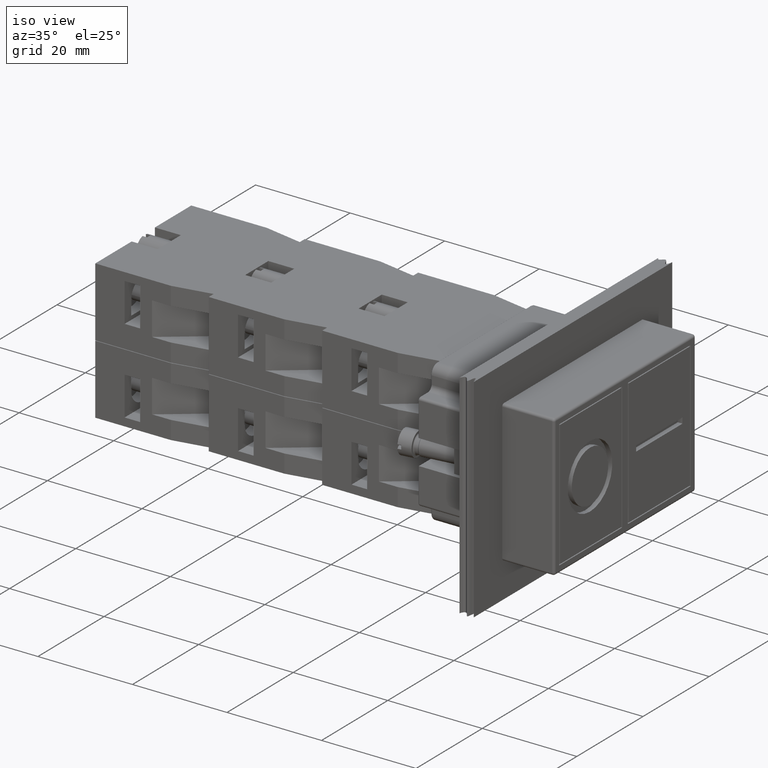
[diagram: clean part render]
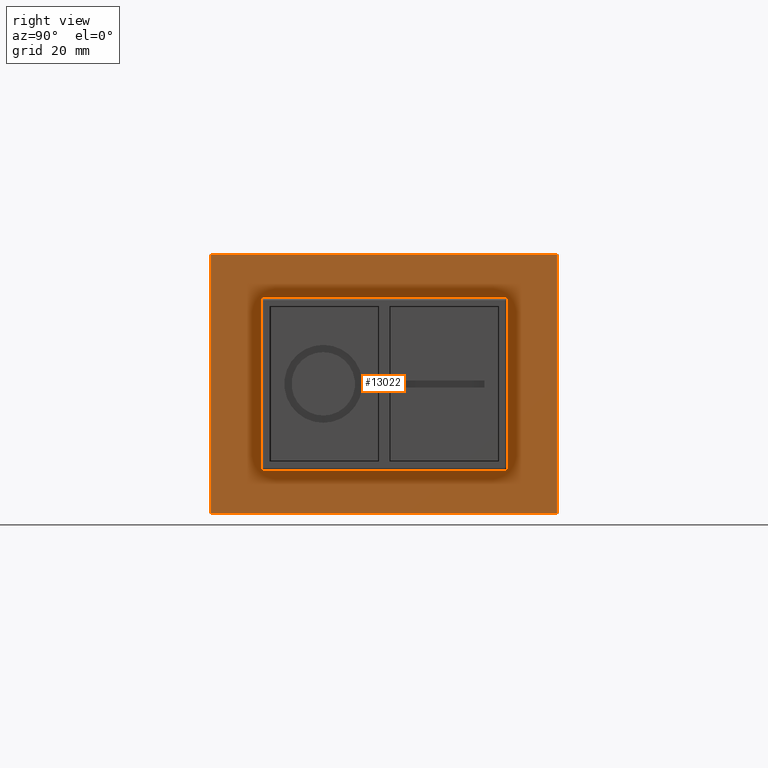
[diagram: tour spotlight — one face highlighted and labeled with its STEP entity id]
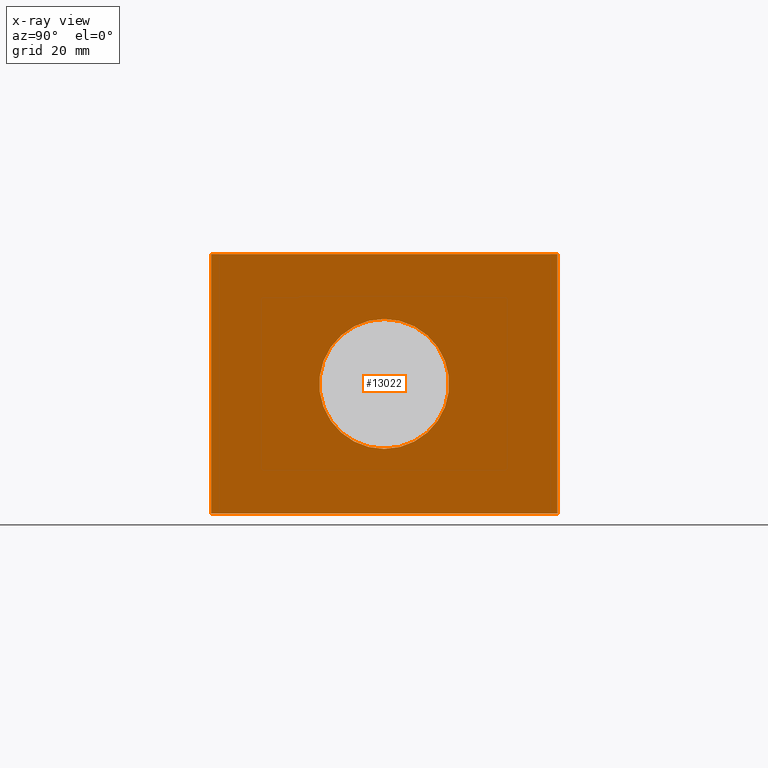
[diagram: x-ray of the same camera — body ghosted, this tour face saturated]
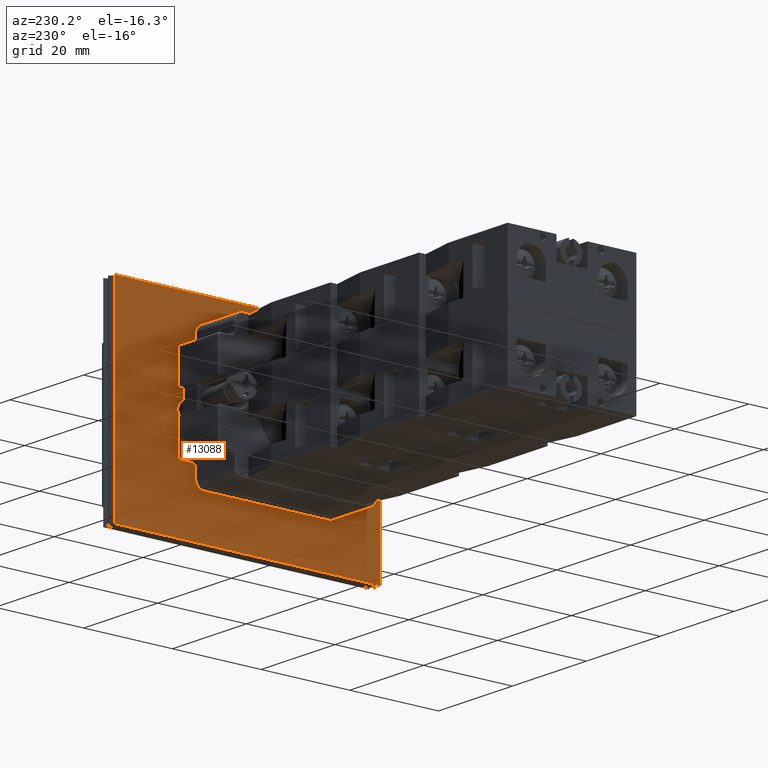
[diagram: tour spotlight — one face highlighted and labeled with its STEP entity id]
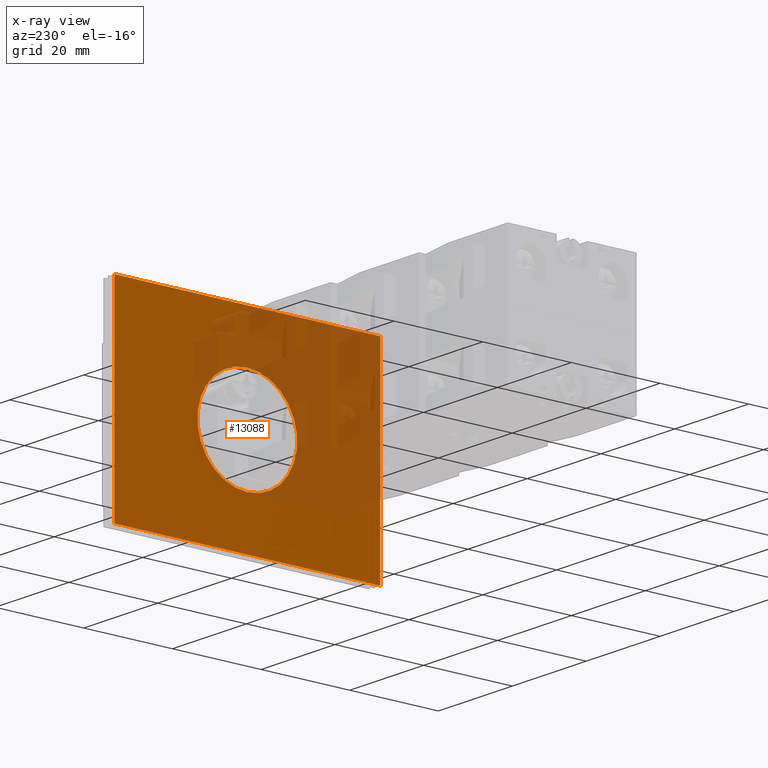
[diagram: x-ray of the same camera — body ghosted, this tour face saturated]
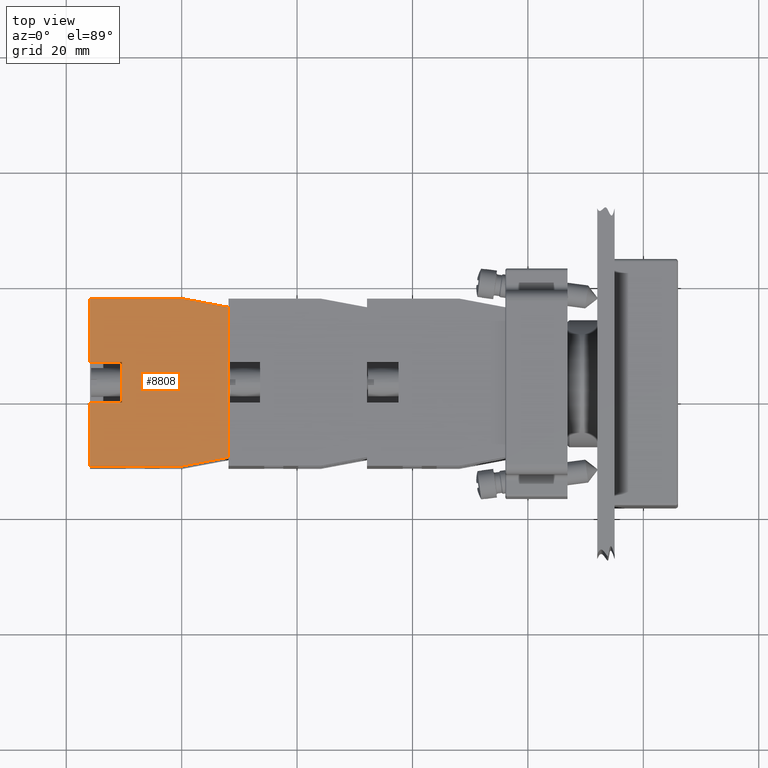
[diagram: tour spotlight — one face highlighted and labeled with its STEP entity id]
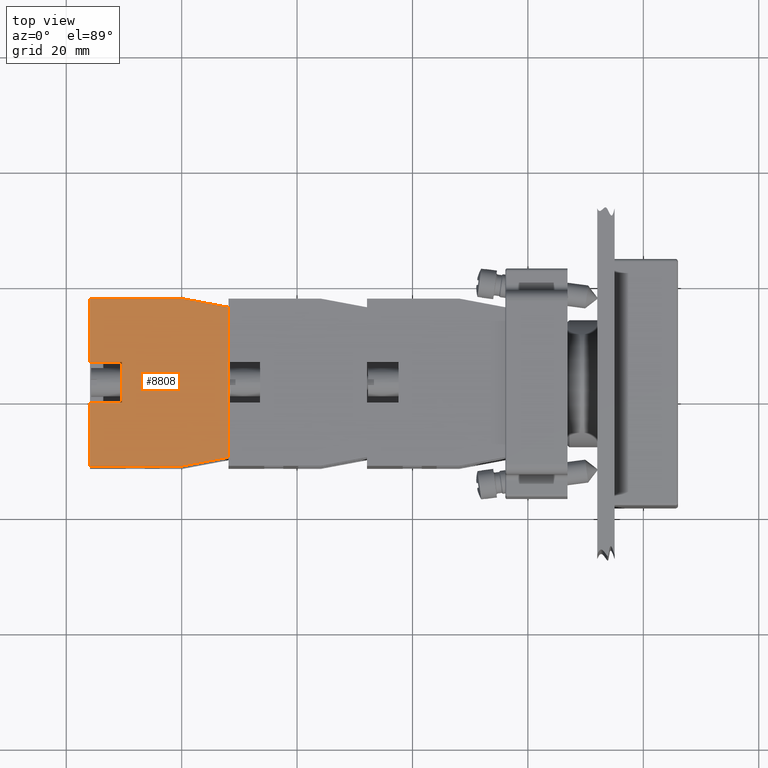
[diagram: tour spotlight — one face highlighted and labeled with its STEP entity id]
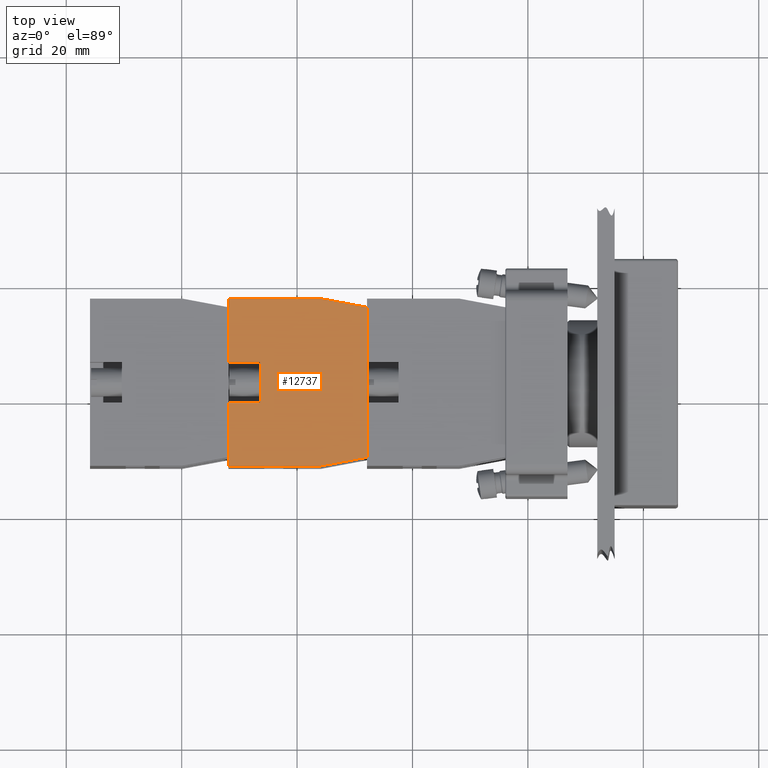
[diagram: tour spotlight — one face highlighted and labeled with its STEP entity id]
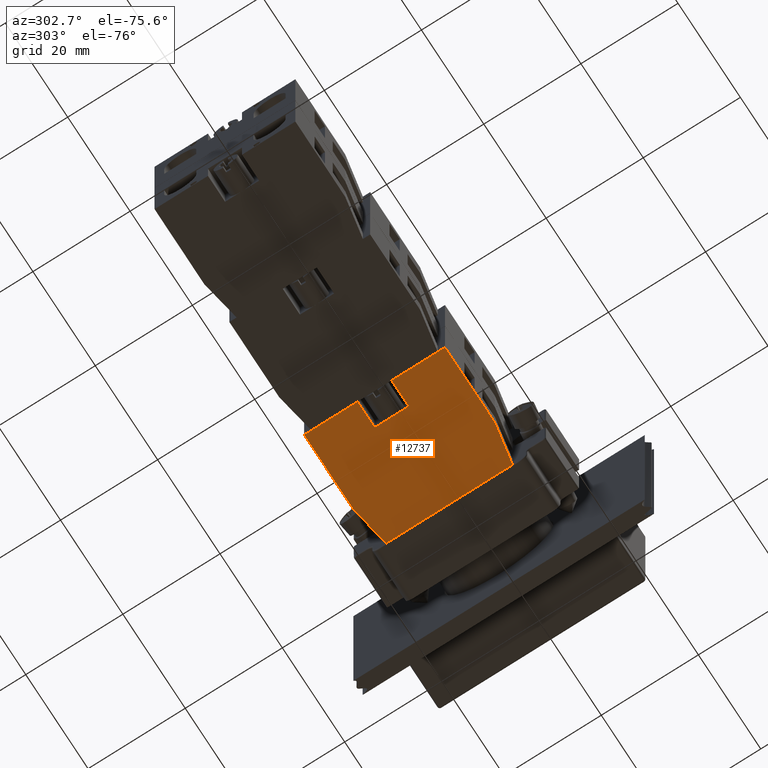
[diagram: tour spotlight — one face highlighted and labeled with its STEP entity id]
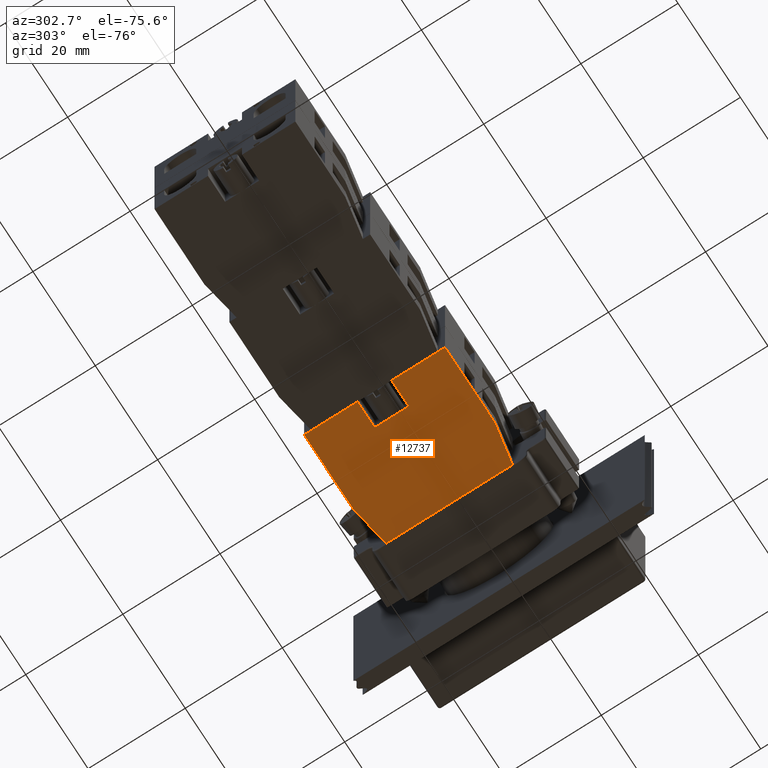
[diagram: tour spotlight — one face highlighted and labeled with its STEP entity id]
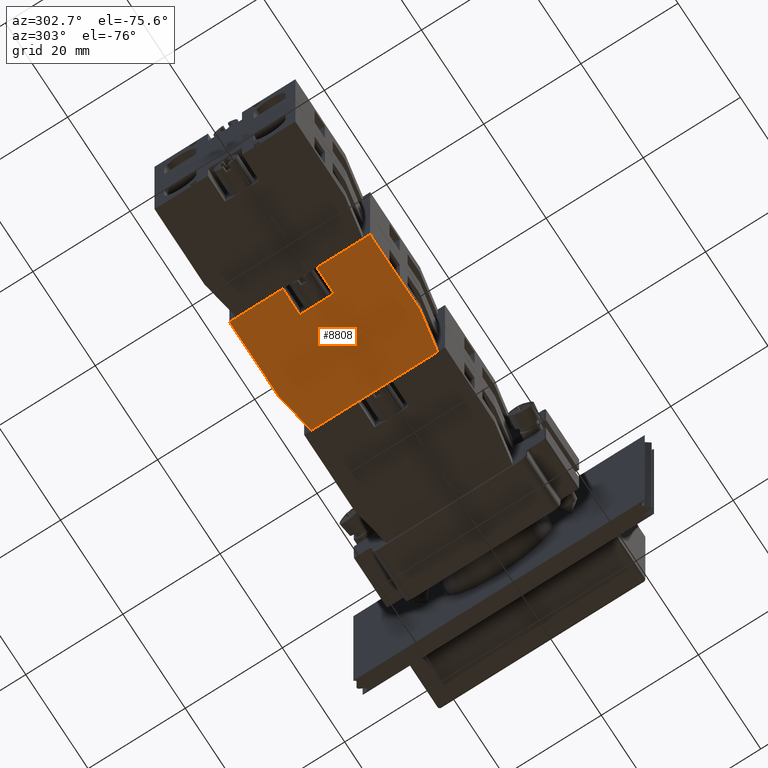
[diagram: tour spotlight — one face highlighted and labeled with its STEP entity id]
A machine part: a face-by-face anatomy tour. The part has 1243 B-rep faces; the first image is the clean iso view, then the 8 largest visible faces are spotlighted one at a time (largest first), each with its STEP entity span.

Face 1 — right view, entity #13022. An x-ray twin of the same camera follows (body ghosted, this face saturated) — the face is partly hidden behind the body. In plain terms, the highlighted planar face has unit normal (1, -0, -0).
Definition (entity closure, byte-faithful):
#12927=CARTESIAN_POINT('',(-12.704183619849175,-32.725398273954283,11.250000000000000));
#12928=VERTEX_POINT('',#12927);
#12929=CARTESIAN_POINT('',(-12.704183619849179,-32.725398273954283,22.500000000000000));
#12930=DIRECTION('',(-1.0,0.0,0.0));
#12931=DIRECTION('',(0.0,0.0,1.0));
#12932=AXIS2_PLACEMENT_3D('',#12929,#12930,#12931);
#12933=CIRCLE('',#12932,11.250000000000000);
#12934=EDGE_CURVE('',#12928,#12928,#12933,.T.);
#12952=CARTESIAN_POINT('',(-12.704183619849179,-2.725398273954287,45.0));
#12953=VERTEX_POINT('',#12952);
#12962=CARTESIAN_POINT('',(-12.704183619849179,-2.725398273954287,0.0));
#12963=VERTEX_POINT('',#12962);
#12964=CARTESIAN_POINT('',(-12.704183619849179,-2.725398273954287,0.0));
#12965=DIRECTION('',(0.0,0.0,1.0));
#12966=VECTOR('',#12965,45.0);
#12967=LINE('',#12964,#12966);
#12968=EDGE_CURVE('',#12963,#12953,#12967,.T.);
#12989=CARTESIAN_POINT('',(-12.704183619849179,-2.725398273954287,0.0));
#12990=DIRECTION('',(1.0,0.0,0.0));
#12991=DIRECTION('',(0.0,0.0,-1.0));
#12992=AXIS2_PLACEMENT_3D('',#12989,#12990,#12991);
#12993=PLANE('',#12992);
#12994=CARTESIAN_POINT('',(-12.704183619849172,-62.725398273954283,45.0));
#12995=VERTEX_POINT('',#12994);
#12996=CARTESIAN_POINT('',(-12.704183619849179,-2.725398273954287,45.0));
#12997=DIRECTION('',(0.0,-1.0,0.0));
#12998=VECTOR('',#12997,60.0);
#12999=LINE('',#12996,#12998);
#13000=EDGE_CURVE('',#12953,#12995,#12999,.T.);
#13001=ORIENTED_EDGE('',*,*,#13000,.T.);
#13002=CARTESIAN_POINT('',(-12.704183619849172,-62.725398273954283,0.0));
#13003=VERTEX_POINT('',#13002);
#13004=CARTESIAN_POINT('',(-12.704183619849172,-62.725398273954283,0.0));
#13005=DIRECTION('',(0.0,0.0,1.0));
#13006=VECTOR('',#13005,45.0);
#13007=LINE('',#13004,#13006);
#13008=EDGE_CURVE('',#13003,#12995,#13007,.T.);
#13009=ORIENTED_EDGE('',*,*,#13008,.F.);
#13010=CARTESIAN_POINT('',(-12.704183619849172,-62.725398273954283,0.0));
#13011=DIRECTION('',(0.0,1.0,0.0));
#13012=VECTOR('',#13011,60.0);
#13013=LINE('',#13010,#13012);
#13014=EDGE_CURVE('',#13003,#12963,#13013,.T.);
#13015=ORIENTED_EDGE('',*,*,#13014,.T.);
#13016=ORIENTED_EDGE('',*,*,#12968,.T.);
#13017=EDGE_LOOP('',(#13001,#13009,#13015,#13016));
#13018=FACE_OUTER_BOUND('',#13017,.T.);
#13019=ORIENTED_EDGE('',*,*,#12934,.T.);
#13020=EDGE_LOOP('',(#13019));
#13021=FACE_BOUND('',#13020,.T.);
#13022=ADVANCED_FACE('',(#13018,#13021),#12993,.T.);

Face 2 — auxiliary view, entity #13088. An x-ray twin of the same camera follows (body ghosted, this face saturated) — the face is partly hidden behind the body. In plain terms, the highlighted planar face has unit normal (-1, 0, 0).
Definition (entity closure, byte-faithful):
#12916=CARTESIAN_POINT('',(-15.704183619849179,-32.725398273954283,11.250000000000000));
#12917=VERTEX_POINT('',#12916);
#12918=CARTESIAN_POINT('',(-15.704183619849179,-32.725398273954283,22.500000000000000));
#12919=DIRECTION('',(1.0,0.0,0.0));
#12920=DIRECTION('',(0.0,0.0,1.0));
#12921=AXIS2_PLACEMENT_3D('',#12918,#12919,#12920);
#12922=CIRCLE('',#12921,11.250000000000000);
#12923=EDGE_CURVE('',#12917,#12917,#12922,.T.);
#12950=CARTESIAN_POINT('',(-15.704183619849179,-2.725398273954287,45.0));
#12951=VERTEX_POINT('',#12950);
#12970=CARTESIAN_POINT('',(-15.704183619849179,-2.725398273954287,0.0));
#12971=VERTEX_POINT('',#12970);
#12980=CARTESIAN_POINT('',(-15.704183619849179,-2.725398273954287,0.0));
#12981=DIRECTION('',(0.0,0.0,1.0));
#12982=VECTOR('',#12981,45.0);
#12983=LINE('',#12980,#12982);
#12984=EDGE_CURVE('',#12971,#12951,#12983,.T.);
#13034=CARTESIAN_POINT('',(-15.704183619849179,-62.725398273954283,45.0));
#13035=VERTEX_POINT('',#13034);
#13044=CARTESIAN_POINT('',(-15.704183619849179,-62.725398273954283,0.0));
#13045=VERTEX_POINT('',#13044);
#13046=CARTESIAN_POINT('',(-15.704183619849179,-62.725398273954283,0.0));
#13047=DIRECTION('',(0.0,0.0,1.0));
#13048=VECTOR('',#13047,45.0);
#13049=LINE('',#13046,#13048);
#13050=EDGE_CURVE('',#13045,#13035,#13049,.T.);
#13064=CARTESIAN_POINT('',(-15.704183619849179,-62.725398273954283,0.0));
#13065=DIRECTION('',(-1.0,0.0,0.0));
#13066=DIRECTION('',(0.0,0.0,1.0));
#13067=AXIS2_PLACEMENT_3D('',#13064,#13065,#13066);
#13068=PLANE('',#13067);
#13069=CARTESIAN_POINT('',(-15.704183619849179,-62.725398273954283,45.0));
#13070=DIRECTION('',(0.0,1.0,0.0));
#13071=VECTOR('',#13070,60.0);
#13072=LINE('',#13069,#13071);
#13073=EDGE_CURVE('',#13035,#12951,#13072,.T.);
#13074=ORIENTED_EDGE('',*,*,#13073,.T.);
#13075=ORIENTED_EDGE('',*,*,#12984,.F.);
#13076=CARTESIAN_POINT('',(-15.704183619849179,-2.725398273954287,0.0));
#13077=DIRECTION('',(0.0,-1.0,0.0));
#13078=VECTOR('',#13077,60.0);
#13079=LINE('',#13076,#13078);
#13080=EDGE_CURVE('',#12971,#13045,#13079,.T.);
#13081=ORIENTED_EDGE('',*,*,#13080,.T.);
#13082=ORIENTED_EDGE('',*,*,#13050,.T.);
#13083=EDGE_LOOP('',(#13074,#13075,#13081,#13082));
#13084=FACE_OUTER_BOUND('',#13083,.T.);
#13085=ORIENTED_EDGE('',*,*,#12923,.T.);
#13086=EDGE_LOOP('',(#13085));
#13087=FACE_BOUND('',#13086,.T.);
#13088=ADVANCED_FACE('',(#13084,#13087),#13068,.T.);

Face 3 — top view, entity #8808. In plain terms, the highlighted planar face has unit normal (-0, -0, 1).
Definition (entity closure, byte-faithful):
#7111=CARTESIAN_POINT('',(-44.936741828918457,7.797073323279626,14.699999999999999));
#7112=VERTEX_POINT('',#7111);
#7119=CARTESIAN_POINT('',(-44.936741828918471,23.797073323279623,14.699999999999999));
#7120=VERTEX_POINT('',#7119);
#7121=CARTESIAN_POINT('',(-44.936741828918457,7.797073323279626,14.699999999999999));
#7122=DIRECTION('',(0.0,1.0,0.0));
#7123=VECTOR('',#7122,15.999999999999996);
#7124=LINE('',#7121,#7123);
#7125=EDGE_CURVE('',#7112,#7120,#7124,.T.);
#7192=CARTESIAN_POINT('',(-43.436741828918457,-0.202926676720380,14.699999999999999));
#7193=VERTEX_POINT('',#7192);
#7200=CARTESIAN_POINT('',(-43.436741828918457,-0.202926676720380,14.699999999999999));
#7201=DIRECTION('',(-0.184288535050185,0.982872186934322,0.0));
#7202=VECTOR('',#7201,8.139410298049860);
#7203=LINE('',#7200,#7202);
#7204=EDGE_CURVE('',#7193,#7112,#7203,.T.);
#7343=CARTESIAN_POINT('',(-17.436741828918457,-0.202926676720377,14.699999999999999));
#7344=VERTEX_POINT('',#7343);
#7351=CARTESIAN_POINT('',(-17.436741828918457,-0.202926676720377,14.699999999999999));
#7352=DIRECTION('',(-1.0,0.0,0.0));
#7353=VECTOR('',#7352,26.0);
#7354=LINE('',#7351,#7353);
#7355=EDGE_CURVE('',#7344,#7193,#7354,.T.);
#7436=CARTESIAN_POINT('',(-15.936741828918466,7.797073323279626,14.699999999999999));
#7437=VERTEX_POINT('',#7436);
#7444=CARTESIAN_POINT('',(-15.936741828918466,7.797073323279626,14.699999999999999));
#7445=DIRECTION('',(-0.184288535050184,-0.982872186934322,0.0));
#7446=VECTOR('',#7445,8.139410298049855);
#7447=LINE('',#7444,#7446);
#7448=EDGE_CURVE('',#7437,#7344,#7447,.T.);
#8543=CARTESIAN_POINT('',(-26.936741828918468,18.297073323279626,14.699999999999999));
#8544=VERTEX_POINT('',#8543);
#8553=CARTESIAN_POINT('',(-26.936741828918468,23.797073323279626,14.699999999999999));
#8554=VERTEX_POINT('',#8553);
#8555=CARTESIAN_POINT('',(-26.936741828918468,23.797073323279626,14.699999999999999));
#8556=DIRECTION('',(0.0,-1.0,0.0));
#8557=VECTOR('',#8556,5.500000000000000);
#8558=LINE('',#8555,#8557);
#8559=EDGE_CURVE('',#8554,#8544,#8558,.T.);
#8614=CARTESIAN_POINT('',(-33.936741828918464,18.297073323279619,14.699999999999999));
#8615=VERTEX_POINT('',#8614);
#8623=CARTESIAN_POINT('',(-33.936741828918464,23.797073323279623,14.699999999999999));
#8624=VERTEX_POINT('',#8623);
#8631=CARTESIAN_POINT('',(-33.936741828918464,18.297073323279619,14.699999999999999));
#8632=DIRECTION('',(0.0,1.0,0.0));
#8633=VECTOR('',#8632,5.500000000000004);
#8634=LINE('',#8631,#8633);
#8635=EDGE_CURVE('',#8615,#8624,#8634,.T.);
#8648=CARTESIAN_POINT('',(-26.936741828918468,18.297073323279626,14.699999999999999));
#8649=DIRECTION('',(-1.0,0.0,0.0));
#8650=VECTOR('',#8649,6.999999999999996);
#8651=LINE('',#8648,#8650);
#8652=EDGE_CURVE('',#8544,#8615,#8651,.T.);
#8668=CARTESIAN_POINT('',(-15.936741828918466,23.797073323279626,14.699999999999999));
#8669=VERTEX_POINT('',#8668);
#8670=CARTESIAN_POINT('',(-26.936741828918468,23.797073323279626,14.699999999999999));
#8671=DIRECTION('',(1.0,0.0,0.0));
#8672=VECTOR('',#8671,11.000000000000002);
#8673=LINE('',#8670,#8672);
#8674=EDGE_CURVE('',#8554,#8669,#8673,.T.);
#8691=CARTESIAN_POINT('',(-44.936741828918471,23.797073323279623,14.699999999999999));
#8692=DIRECTION('',(1.0,0.0,0.0));
#8693=VECTOR('',#8692,11.000000000000007);
#8694=LINE('',#8691,#8693);
#8695=EDGE_CURVE('',#7120,#8624,#8694,.T.);
#8739=CARTESIAN_POINT('',(-15.936741828918466,23.797073323279626,14.699999999999999));
#8740=DIRECTION('',(0.0,-1.0,0.0));
#8741=VECTOR('',#8740,16.0);
#8742=LINE('',#8739,#8741);
#8743=EDGE_CURVE('',#8669,#7437,#8742,.T.);
#8791=CARTESIAN_POINT('',(-30.436741828918457,12.124046801833057,14.699999999999999));
#8792=DIRECTION('',(0.0,0.0,1.0));
#8793=DIRECTION('',(1.0,0.0,0.0));
#8794=AXIS2_PLACEMENT_3D('',#8791,#8792,#8793);
#8795=PLANE('',#8794);
#8796=ORIENTED_EDGE('',*,*,#8635,.T.);
#8797=ORIENTED_EDGE('',*,*,#8695,.F.);
#8798=ORIENTED_EDGE('',*,*,#7125,.F.);
#8799=ORIENTED_EDGE('',*,*,#7204,.F.);
#8800=ORIENTED_EDGE('',*,*,#7355,.F.);
#8801=ORIENTED_EDGE('',*,*,#7448,.F.);
#8802=ORIENTED_EDGE('',*,*,#8743,.F.);
#8803=ORIENTED_EDGE('',*,*,#8674,.F.);
#8804=ORIENTED_EDGE('',*,*,#8559,.T.);
#8805=ORIENTED_EDGE('',*,*,#8652,.T.);
#8806=EDGE_LOOP('',(#8796,#8797,#8798,#8799,#8800,#8801,#8802,#8803,#8804,#8805));
#8807=FACE_OUTER_BOUND('',#8806,.T.);
#8808=ADVANCED_FACE('',(#8807),#8795,.T.);

Face 4 — top view, entity #8808. In plain terms, the highlighted planar face has unit normal (-0, -0, 1).
Definition (entity closure, byte-faithful):
#7111=CARTESIAN_POINT('',(-44.936741828918457,7.797073323279626,14.699999999999999));
#7112=VERTEX_POINT('',#7111);
#7119=CARTESIAN_POINT('',(-44.936741828918471,23.797073323279623,14.699999999999999));
#7120=VERTEX_POINT('',#7119);
#7121=CARTESIAN_POINT('',(-44.936741828918457,7.797073323279626,14.699999999999999));
#7122=DIRECTION('',(0.0,1.0,0.0));
#7123=VECTOR('',#7122,15.999999999999996);
#7124=LINE('',#7121,#7123);
#7125=EDGE_CURVE('',#7112,#7120,#7124,.T.);
#7192=CARTESIAN_POINT('',(-43.436741828918457,-0.202926676720380,14.699999999999999));
#7193=VERTEX_POINT('',#7192);
#7200=CARTESIAN_POINT('',(-43.436741828918457,-0.202926676720380,14.699999999999999));
#7201=DIRECTION('',(-0.184288535050185,0.982872186934322,0.0));
#7202=VECTOR('',#7201,8.139410298049860);
#7203=LINE('',#7200,#7202);
#7204=EDGE_CURVE('',#7193,#7112,#7203,.T.);
#7343=CARTESIAN_POINT('',(-17.436741828918457,-0.202926676720377,14.699999999999999));
#7344=VERTEX_POINT('',#7343);
#7351=CARTESIAN_POINT('',(-17.436741828918457,-0.202926676720377,14.699999999999999));
#7352=DIRECTION('',(-1.0,0.0,0.0));
#7353=VECTOR('',#7352,26.0);
#7354=LINE('',#7351,#7353);
#7355=EDGE_CURVE('',#7344,#7193,#7354,.T.);
#7436=CARTESIAN_POINT('',(-15.936741828918466,7.797073323279626,14.699999999999999));
#7437=VERTEX_POINT('',#7436);
#7444=CARTESIAN_POINT('',(-15.936741828918466,7.797073323279626,14.699999999999999));
#7445=DIRECTION('',(-0.184288535050184,-0.982872186934322,0.0));
#7446=VECTOR('',#7445,8.139410298049855);
#7447=LINE('',#7444,#7446);
#7448=EDGE_CURVE('',#7437,#7344,#7447,.T.);
#8543=CARTESIAN_POINT('',(-26.936741828918468,18.297073323279626,14.699999999999999));
#8544=VERTEX_POINT('',#8543);
#8553=CARTESIAN_POINT('',(-26.936741828918468,23.797073323279626,14.699999999999999));
#8554=VERTEX_POINT('',#8553);
#8555=CARTESIAN_POINT('',(-26.936741828918468,23.797073323279626,14.699999999999999));
#8556=DIRECTION('',(0.0,-1.0,0.0));
#8557=VECTOR('',#8556,5.500000000000000);
#8558=LINE('',#8555,#8557);
#8559=EDGE_CURVE('',#8554,#8544,#8558,.T.);
#8614=CARTESIAN_POINT('',(-33.936741828918464,18.297073323279619,14.699999999999999));
#8615=VERTEX_POINT('',#8614);
#8623=CARTESIAN_POINT('',(-33.936741828918464,23.797073323279623,14.699999999999999));
#8624=VERTEX_POINT('',#8623);
#8631=CARTESIAN_POINT('',(-33.936741828918464,18.297073323279619,14.699999999999999));
#8632=DIRECTION('',(0.0,1.0,0.0));
#8633=VECTOR('',#8632,5.500000000000004);
#8634=LINE('',#8631,#8633);
#8635=EDGE_CURVE('',#8615,#8624,#8634,.T.);
#8648=CARTESIAN_POINT('',(-26.936741828918468,18.297073323279626,14.699999999999999));
#8649=DIRECTION('',(-1.0,0.0,0.0));
#8650=VECTOR('',#8649,6.999999999999996);
#8651=LINE('',#8648,#8650);
#8652=EDGE_CURVE('',#8544,#8615,#8651,.T.);
#8668=CARTESIAN_POINT('',(-15.936741828918466,23.797073323279626,14.699999999999999));
#8669=VERTEX_POINT('',#8668);
#8670=CARTESIAN_POINT('',(-26.936741828918468,23.797073323279626,14.699999999999999));
#8671=DIRECTION('',(1.0,0.0,0.0));
#8672=VECTOR('',#8671,11.000000000000002);
#8673=LINE('',#8670,#8672);
#8674=EDGE_CURVE('',#8554,#8669,#8673,.T.);
#8691=CARTESIAN_POINT('',(-44.936741828918471,23.797073323279623,14.699999999999999));
#8692=DIRECTION('',(1.0,0.0,0.0));
#8693=VECTOR('',#8692,11.000000000000007);
#8694=LINE('',#8691,#8693);
#8695=EDGE_CURVE('',#7120,#8624,#8694,.T.);
#8739=CARTESIAN_POINT('',(-15.936741828918466,23.797073323279626,14.699999999999999));
#8740=DIRECTION('',(0.0,-1.0,0.0));
#8741=VECTOR('',#8740,16.0);
#8742=LINE('',#8739,#8741);
#8743=EDGE_CURVE('',#8669,#7437,#8742,.T.);
#8791=CARTESIAN_POINT('',(-30.436741828918457,12.124046801833057,14.699999999999999));
#8792=DIRECTION('',(0.0,0.0,1.0));
#8793=DIRECTION('',(1.0,0.0,0.0));
#8794=AXIS2_PLACEMENT_3D('',#8791,#8792,#8793);
#8795=PLANE('',#8794);
#8796=ORIENTED_EDGE('',*,*,#8635,.T.);
#8797=ORIENTED_EDGE('',*,*,#8695,.F.);
#8798=ORIENTED_EDGE('',*,*,#7125,.F.);
#8799=ORIENTED_EDGE('',*,*,#7204,.F.);
#8800=ORIENTED_EDGE('',*,*,#7355,.F.);
#8801=ORIENTED_EDGE('',*,*,#7448,.F.);
#8802=ORIENTED_EDGE('',*,*,#8743,.F.);
#8803=ORIENTED_EDGE('',*,*,#8674,.F.);
#8804=ORIENTED_EDGE('',*,*,#8559,.T.);
#8805=ORIENTED_EDGE('',*,*,#8652,.T.);
#8806=EDGE_LOOP('',(#8796,#8797,#8798,#8799,#8800,#8801,#8802,#8803,#8804,#8805));
#8807=FACE_OUTER_BOUND('',#8806,.T.);
#8808=ADVANCED_FACE('',(#8807),#8795,.T.);

Face 5 — top view, entity #12737. In plain terms, the highlighted planar face has unit normal (-0, -0, 1).
Definition (entity closure, byte-faithful):
#11040=CARTESIAN_POINT('',(-44.936741828918457,7.797073323279626,14.699999999999999));
#11041=VERTEX_POINT('',#11040);
#11048=CARTESIAN_POINT('',(-44.936741828918471,23.797073323279623,14.699999999999999));
#11049=VERTEX_POINT('',#11048);
#11050=CARTESIAN_POINT('',(-44.936741828918457,7.797073323279626,14.699999999999999));
#11051=DIRECTION('',(0.0,1.0,0.0));
#11052=VECTOR('',#11051,15.999999999999996);
#11053=LINE('',#11050,#11052);
#11054=EDGE_CURVE('',#11041,#11049,#11053,.T.);
#11121=CARTESIAN_POINT('',(-43.436741828918457,-0.202926676720380,14.699999999999999));
#11122=VERTEX_POINT('',#11121);
#11129=CARTESIAN_POINT('',(-43.436741828918457,-0.202926676720380,14.699999999999999));
#11130=DIRECTION('',(-0.184288535050185,0.982872186934322,0.0));
#11131=VECTOR('',#11130,8.139410298049860);
#11132=LINE('',#11129,#11131);
#11133=EDGE_CURVE('',#11122,#11041,#11132,.T.);
#11272=CARTESIAN_POINT('',(-17.436741828918457,-0.202926676720377,14.699999999999999));
#11273=VERTEX_POINT('',#11272);
#11280=CARTESIAN_POINT('',(-17.436741828918457,-0.202926676720377,14.699999999999999));
#11281=DIRECTION('',(-1.0,0.0,0.0));
#11282=VECTOR('',#11281,26.0);
#11283=LINE('',#11280,#11282);
#11284=EDGE_CURVE('',#11273,#11122,#11283,.T.);
#11365=CARTESIAN_POINT('',(-15.936741828918466,7.797073323279626,14.699999999999999));
#11366=VERTEX_POINT('',#11365);
#11373=CARTESIAN_POINT('',(-15.936741828918466,7.797073323279626,14.699999999999999));
#11374=DIRECTION('',(-0.184288535050184,-0.982872186934322,0.0));
#11375=VECTOR('',#11374,8.139410298049855);
#11376=LINE('',#11373,#11375);
#11377=EDGE_CURVE('',#11366,#11273,#11376,.T.);
#12472=CARTESIAN_POINT('',(-26.936741828918468,18.297073323279626,14.699999999999999));
#12473=VERTEX_POINT('',#12472);
#12482=CARTESIAN_POINT('',(-26.936741828918468,23.797073323279626,14.699999999999999));
#12483=VERTEX_POINT('',#12482);
#12484=CARTESIAN_POINT('',(-26.936741828918468,23.797073323279626,14.699999999999999));
#12485=DIRECTION('',(0.0,-1.0,0.0));
#12486=VECTOR('',#12485,5.500000000000000);
#12487=LINE('',#12484,#12486);
#12488=EDGE_CURVE('',#12483,#12473,#12487,.T.);
#12543=CARTESIAN_POINT('',(-33.936741828918464,18.297073323279619,14.699999999999999));
#12544=VERTEX_POINT('',#12543);
#12552=CARTESIAN_POINT('',(-33.936741828918464,23.797073323279623,14.699999999999999));
#12553=VERTEX_POINT('',#12552);
#12560=CARTESIAN_POINT('',(-33.936741828918464,18.297073323279619,14.699999999999999));
#12561=DIRECTION('',(0.0,1.0,0.0));
#12562=VECTOR('',#12561,5.500000000000004);
#12563=LINE('',#12560,#12562);
#12564=EDGE_CURVE('',#12544,#12553,#12563,.T.);
#12577=CARTESIAN_POINT('',(-26.936741828918468,18.297073323279626,14.699999999999999));
#12578=DIRECTION('',(-1.0,0.0,0.0));
#12579=VECTOR('',#12578,6.999999999999996);
#12580=LINE('',#12577,#12579);
#12581=EDGE_CURVE('',#12473,#12544,#12580,.T.);
#12597=CARTESIAN_POINT('',(-15.936741828918466,23.797073323279626,14.699999999999999));
#12598=VERTEX_POINT('',#12597);
#12599=CARTESIAN_POINT('',(-26.936741828918468,23.797073323279626,14.699999999999999));
#12600=DIRECTION('',(1.0,0.0,0.0));
#12601=VECTOR('',#12600,11.000000000000002);
#12602=LINE('',#12599,#12601);
#12603=EDGE_CURVE('',#12483,#12598,#12602,.T.);
#12620=CARTESIAN_POINT('',(-44.936741828918471,23.797073323279623,14.699999999999999));
#12621=DIRECTION('',(1.0,0.0,0.0));
#12622=VECTOR('',#12621,11.000000000000007);
#12623=LINE('',#12620,#12622);
#12624=EDGE_CURVE('',#11049,#12553,#12623,.T.);
#12668=CARTESIAN_POINT('',(-15.936741828918466,23.797073323279626,14.699999999999999));
#12669=DIRECTION('',(0.0,-1.0,0.0));
#12670=VECTOR('',#12669,16.0);
#12671=LINE('',#12668,#12670);
#12672=EDGE_CURVE('',#12598,#11366,#12671,.T.);
#12720=CARTESIAN_POINT('',(-30.436741828918457,12.124046801833057,14.699999999999999));
#12721=DIRECTION('',(0.0,0.0,1.0));
#12722=DIRECTION('',(1.0,0.0,0.0));
#12723=AXIS2_PLACEMENT_3D('',#12720,#12721,#12722);
#12724=PLANE('',#12723);
#12725=ORIENTED_EDGE('',*,*,#12564,.T.);
#12726=ORIENTED_EDGE('',*,*,#12624,.F.);
#12727=ORIENTED_EDGE('',*,*,#11054,.F.);
#12728=ORIENTED_EDGE('',*,*,#11133,.F.);
#12729=ORIENTED_EDGE('',*,*,#11284,.F.);
#12730=ORIENTED_EDGE('',*,*,#11377,.F.);
#12731=ORIENTED_EDGE('',*,*,#12672,.F.);
#12732=ORIENTED_EDGE('',*,*,#12603,.F.);
#12733=ORIENTED_EDGE('',*,*,#12488,.T.);
#12734=ORIENTED_EDGE('',*,*,#12581,.T.);
#12735=EDGE_LOOP('',(#12725,#12726,#12727,#12728,#12729,#12730,#12731,#12732,#12733,#12734));
#12736=FACE_OUTER_BOUND('',#12735,.T.);
#12737=ADVANCED_FACE('',(#12736),#12724,.T.);

Face 6 — auxiliary view, entity #12737. In plain terms, the highlighted planar face has unit normal (-0, -0, -1).
Definition (entity closure, byte-faithful):
#11040=CARTESIAN_POINT('',(-44.936741828918457,7.797073323279626,14.699999999999999));
#11041=VERTEX_POINT('',#11040);
#11048=CARTESIAN_POINT('',(-44.936741828918471,23.797073323279623,14.699999999999999));
#11049=VERTEX_POINT('',#11048);
#11050=CARTESIAN_POINT('',(-44.936741828918457,7.797073323279626,14.699999999999999));
#11051=DIRECTION('',(0.0,1.0,0.0));
#11052=VECTOR('',#11051,15.999999999999996);
#11053=LINE('',#11050,#11052);
#11054=EDGE_CURVE('',#11041,#11049,#11053,.T.);
#11121=CARTESIAN_POINT('',(-43.436741828918457,-0.202926676720380,14.699999999999999));
#11122=VERTEX_POINT('',#11121);
#11129=CARTESIAN_POINT('',(-43.436741828918457,-0.202926676720380,14.699999999999999));
#11130=DIRECTION('',(-0.184288535050185,0.982872186934322,0.0));
#11131=VECTOR('',#11130,8.139410298049860);
#11132=LINE('',#11129,#11131);
#11133=EDGE_CURVE('',#11122,#11041,#11132,.T.);
#11272=CARTESIAN_POINT('',(-17.436741828918457,-0.202926676720377,14.699999999999999));
#11273=VERTEX_POINT('',#11272);
#11280=CARTESIAN_POINT('',(-17.436741828918457,-0.202926676720377,14.699999999999999));
#11281=DIRECTION('',(-1.0,0.0,0.0));
#11282=VECTOR('',#11281,26.0);
#11283=LINE('',#11280,#11282);
#11284=EDGE_CURVE('',#11273,#11122,#11283,.T.);
#11365=CARTESIAN_POINT('',(-15.936741828918466,7.797073323279626,14.699999999999999));
#11366=VERTEX_POINT('',#11365);
#11373=CARTESIAN_POINT('',(-15.936741828918466,7.797073323279626,14.699999999999999));
#11374=DIRECTION('',(-0.184288535050184,-0.982872186934322,0.0));
#11375=VECTOR('',#11374,8.139410298049855);
#11376=LINE('',#11373,#11375);
#11377=EDGE_CURVE('',#11366,#11273,#11376,.T.);
#12472=CARTESIAN_POINT('',(-26.936741828918468,18.297073323279626,14.699999999999999));
#12473=VERTEX_POINT('',#12472);
#12482=CARTESIAN_POINT('',(-26.936741828918468,23.797073323279626,14.699999999999999));
#12483=VERTEX_POINT('',#12482);
#12484=CARTESIAN_POINT('',(-26.936741828918468,23.797073323279626,14.699999999999999));
#12485=DIRECTION('',(0.0,-1.0,0.0));
#12486=VECTOR('',#12485,5.500000000000000);
#12487=LINE('',#12484,#12486);
#12488=EDGE_CURVE('',#12483,#12473,#12487,.T.);
#12543=CARTESIAN_POINT('',(-33.936741828918464,18.297073323279619,14.699999999999999));
#12544=VERTEX_POINT('',#12543);
#12552=CARTESIAN_POINT('',(-33.936741828918464,23.797073323279623,14.699999999999999));
#12553=VERTEX_POINT('',#12552);
#12560=CARTESIAN_POINT('',(-33.936741828918464,18.297073323279619,14.699999999999999));
#12561=DIRECTION('',(0.0,1.0,0.0));
#12562=VECTOR('',#12561,5.500000000000004);
#12563=LINE('',#12560,#12562);
#12564=EDGE_CURVE('',#12544,#12553,#12563,.T.);
#12577=CARTESIAN_POINT('',(-26.936741828918468,18.297073323279626,14.699999999999999));
#12578=DIRECTION('',(-1.0,0.0,0.0));
#12579=VECTOR('',#12578,6.999999999999996);
#12580=LINE('',#12577,#12579);
#12581=EDGE_CURVE('',#12473,#12544,#12580,.T.);
#12597=CARTESIAN_POINT('',(-15.936741828918466,23.797073323279626,14.699999999999999));
#12598=VERTEX_POINT('',#12597);
#12599=CARTESIAN_POINT('',(-26.936741828918468,23.797073323279626,14.699999999999999));
#12600=DIRECTION('',(1.0,0.0,0.0));
#12601=VECTOR('',#12600,11.000000000000002);
#12602=LINE('',#12599,#12601);
#12603=EDGE_CURVE('',#12483,#12598,#12602,.T.);
#12620=CARTESIAN_POINT('',(-44.936741828918471,23.797073323279623,14.699999999999999));
#12621=DIRECTION('',(1.0,0.0,0.0));
#12622=VECTOR('',#12621,11.000000000000007);
#12623=LINE('',#12620,#12622);
#12624=EDGE_CURVE('',#11049,#12553,#12623,.T.);
#12668=CARTESIAN_POINT('',(-15.936741828918466,23.797073323279626,14.699999999999999));
#12669=DIRECTION('',(0.0,-1.0,0.0));
#12670=VECTOR('',#12669,16.0);
#12671=LINE('',#12668,#12670);
#12672=EDGE_CURVE('',#12598,#11366,#12671,.T.);
#12720=CARTESIAN_POINT('',(-30.436741828918457,12.124046801833057,14.699999999999999));
#12721=DIRECTION('',(0.0,0.0,1.0));
#12722=DIRECTION('',(1.0,0.0,0.0));
#12723=AXIS2_PLACEMENT_3D('',#12720,#12721,#12722);
#12724=PLANE('',#12723);
#12725=ORIENTED_EDGE('',*,*,#12564,.T.);
#12726=ORIENTED_EDGE('',*,*,#12624,.F.);
#12727=ORIENTED_EDGE('',*,*,#11054,.F.);
#12728=ORIENTED_EDGE('',*,*,#11133,.F.);
#12729=ORIENTED_EDGE('',*,*,#11284,.F.);
#12730=ORIENTED_EDGE('',*,*,#11377,.F.);
#12731=ORIENTED_EDGE('',*,*,#12672,.F.);
#12732=ORIENTED_EDGE('',*,*,#12603,.F.);
#12733=ORIENTED_EDGE('',*,*,#12488,.T.);
#12734=ORIENTED_EDGE('',*,*,#12581,.T.);
#12735=EDGE_LOOP('',(#12725,#12726,#12727,#12728,#12729,#12730,#12731,#12732,#12733,#12734));
#12736=FACE_OUTER_BOUND('',#12735,.T.);
#12737=ADVANCED_FACE('',(#12736),#12724,.T.);

Face 7 — auxiliary view, entity #12737. In plain terms, the highlighted planar face has unit normal (0, 0, -1).
Definition (entity closure, byte-faithful):
#11040=CARTESIAN_POINT('',(-44.936741828918457,7.797073323279626,14.699999999999999));
#11041=VERTEX_POINT('',#11040);
#11048=CARTESIAN_POINT('',(-44.936741828918471,23.797073323279623,14.699999999999999));
#11049=VERTEX_POINT('',#11048);
#11050=CARTESIAN_POINT('',(-44.936741828918457,7.797073323279626,14.699999999999999));
#11051=DIRECTION('',(0.0,1.0,0.0));
#11052=VECTOR('',#11051,15.999999999999996);
#11053=LINE('',#11050,#11052);
#11054=EDGE_CURVE('',#11041,#11049,#11053,.T.);
#11121=CARTESIAN_POINT('',(-43.436741828918457,-0.202926676720380,14.699999999999999));
#11122=VERTEX_POINT('',#11121);
#11129=CARTESIAN_POINT('',(-43.436741828918457,-0.202926676720380,14.699999999999999));
#11130=DIRECTION('',(-0.184288535050185,0.982872186934322,0.0));
#11131=VECTOR('',#11130,8.139410298049860);
#11132=LINE('',#11129,#11131);
#11133=EDGE_CURVE('',#11122,#11041,#11132,.T.);
#11272=CARTESIAN_POINT('',(-17.436741828918457,-0.202926676720377,14.699999999999999));
#11273=VERTEX_POINT('',#11272);
#11280=CARTESIAN_POINT('',(-17.436741828918457,-0.202926676720377,14.699999999999999));
#11281=DIRECTION('',(-1.0,0.0,0.0));
#11282=VECTOR('',#11281,26.0);
#11283=LINE('',#11280,#11282);
#11284=EDGE_CURVE('',#11273,#11122,#11283,.T.);
#11365=CARTESIAN_POINT('',(-15.936741828918466,7.797073323279626,14.699999999999999));
#11366=VERTEX_POINT('',#11365);
#11373=CARTESIAN_POINT('',(-15.936741828918466,7.797073323279626,14.699999999999999));
#11374=DIRECTION('',(-0.184288535050184,-0.982872186934322,0.0));
#11375=VECTOR('',#11374,8.139410298049855);
#11376=LINE('',#11373,#11375);
#11377=EDGE_CURVE('',#11366,#11273,#11376,.T.);
#12472=CARTESIAN_POINT('',(-26.936741828918468,18.297073323279626,14.699999999999999));
#12473=VERTEX_POINT('',#12472);
#12482=CARTESIAN_POINT('',(-26.936741828918468,23.797073323279626,14.699999999999999));
#12483=VERTEX_POINT('',#12482);
#12484=CARTESIAN_POINT('',(-26.936741828918468,23.797073323279626,14.699999999999999));
#12485=DIRECTION('',(0.0,-1.0,0.0));
#12486=VECTOR('',#12485,5.500000000000000);
#12487=LINE('',#12484,#12486);
#12488=EDGE_CURVE('',#12483,#12473,#12487,.T.);
#12543=CARTESIAN_POINT('',(-33.936741828918464,18.297073323279619,14.699999999999999));
#12544=VERTEX_POINT('',#12543);
#12552=CARTESIAN_POINT('',(-33.936741828918464,23.797073323279623,14.699999999999999));
#12553=VERTEX_POINT('',#12552);
#12560=CARTESIAN_POINT('',(-33.936741828918464,18.297073323279619,14.699999999999999));
#12561=DIRECTION('',(0.0,1.0,0.0));
#12562=VECTOR('',#12561,5.500000000000004);
#12563=LINE('',#12560,#12562);
#12564=EDGE_CURVE('',#12544,#12553,#12563,.T.);
#12577=CARTESIAN_POINT('',(-26.936741828918468,18.297073323279626,14.699999999999999));
#12578=DIRECTION('',(-1.0,0.0,0.0));
#12579=VECTOR('',#12578,6.999999999999996);
#12580=LINE('',#12577,#12579);
#12581=EDGE_CURVE('',#12473,#12544,#12580,.T.);
#12597=CARTESIAN_POINT('',(-15.936741828918466,23.797073323279626,14.699999999999999));
#12598=VERTEX_POINT('',#12597);
#12599=CARTESIAN_POINT('',(-26.936741828918468,23.797073323279626,14.699999999999999));
#12600=DIRECTION('',(1.0,0.0,0.0));
#12601=VECTOR('',#12600,11.000000000000002);
#12602=LINE('',#12599,#12601);
#12603=EDGE_CURVE('',#12483,#12598,#12602,.T.);
#12620=CARTESIAN_POINT('',(-44.936741828918471,23.797073323279623,14.699999999999999));
#12621=DIRECTION('',(1.0,0.0,0.0));
#12622=VECTOR('',#12621,11.000000000000007);
#12623=LINE('',#12620,#12622);
#12624=EDGE_CURVE('',#11049,#12553,#12623,.T.);
#12668=CARTESIAN_POINT('',(-15.936741828918466,23.797073323279626,14.699999999999999));
#12669=DIRECTION('',(0.0,-1.0,0.0));
#12670=VECTOR('',#12669,16.0);
#12671=LINE('',#12668,#12670);
#12672=EDGE_CURVE('',#12598,#11366,#12671,.T.);
#12720=CARTESIAN_POINT('',(-30.436741828918457,12.124046801833057,14.699999999999999));
#12721=DIRECTION('',(0.0,0.0,1.0));
#12722=DIRECTION('',(1.0,0.0,0.0));
#12723=AXIS2_PLACEMENT_3D('',#12720,#12721,#12722);
#12724=PLANE('',#12723);
#12725=ORIENTED_EDGE('',*,*,#12564,.T.);
#12726=ORIENTED_EDGE('',*,*,#12624,.F.);
#12727=ORIENTED_EDGE('',*,*,#11054,.F.);
#12728=ORIENTED_EDGE('',*,*,#11133,.F.);
#12729=ORIENTED_EDGE('',*,*,#11284,.F.);
#12730=ORIENTED_EDGE('',*,*,#11377,.F.);
#12731=ORIENTED_EDGE('',*,*,#12672,.F.);
#12732=ORIENTED_EDGE('',*,*,#12603,.F.);
#12733=ORIENTED_EDGE('',*,*,#12488,.T.);
#12734=ORIENTED_EDGE('',*,*,#12581,.T.);
#12735=EDGE_LOOP('',(#12725,#12726,#12727,#12728,#12729,#12730,#12731,#12732,#12733,#12734));
#12736=FACE_OUTER_BOUND('',#12735,.T.);
#12737=ADVANCED_FACE('',(#12736),#12724,.T.);

Face 8 — auxiliary view, entity #8808. In plain terms, the highlighted planar face has unit normal (-0, -0, -1).
Definition (entity closure, byte-faithful):
#7111=CARTESIAN_POINT('',(-44.936741828918457,7.797073323279626,14.699999999999999));
#7112=VERTEX_POINT('',#7111);
#7119=CARTESIAN_POINT('',(-44.936741828918471,23.797073323279623,14.699999999999999));
#7120=VERTEX_POINT('',#7119);
#7121=CARTESIAN_POINT('',(-44.936741828918457,7.797073323279626,14.699999999999999));
#7122=DIRECTION('',(0.0,1.0,0.0));
#7123=VECTOR('',#7122,15.999999999999996);
#7124=LINE('',#7121,#7123);
#7125=EDGE_CURVE('',#7112,#7120,#7124,.T.);
#7192=CARTESIAN_POINT('',(-43.436741828918457,-0.202926676720380,14.699999999999999));
#7193=VERTEX_POINT('',#7192);
#7200=CARTESIAN_POINT('',(-43.436741828918457,-0.202926676720380,14.699999999999999));
#7201=DIRECTION('',(-0.184288535050185,0.982872186934322,0.0));
#7202=VECTOR('',#7201,8.139410298049860);
#7203=LINE('',#7200,#7202);
#7204=EDGE_CURVE('',#7193,#7112,#7203,.T.);
#7343=CARTESIAN_POINT('',(-17.436741828918457,-0.202926676720377,14.699999999999999));
#7344=VERTEX_POINT('',#7343);
#7351=CARTESIAN_POINT('',(-17.436741828918457,-0.202926676720377,14.699999999999999));
#7352=DIRECTION('',(-1.0,0.0,0.0));
#7353=VECTOR('',#7352,26.0);
#7354=LINE('',#7351,#7353);
#7355=EDGE_CURVE('',#7344,#7193,#7354,.T.);
#7436=CARTESIAN_POINT('',(-15.936741828918466,7.797073323279626,14.699999999999999));
#7437=VERTEX_POINT('',#7436);
#7444=CARTESIAN_POINT('',(-15.936741828918466,7.797073323279626,14.699999999999999));
#7445=DIRECTION('',(-0.184288535050184,-0.982872186934322,0.0));
#7446=VECTOR('',#7445,8.139410298049855);
#7447=LINE('',#7444,#7446);
#7448=EDGE_CURVE('',#7437,#7344,#7447,.T.);
#8543=CARTESIAN_POINT('',(-26.936741828918468,18.297073323279626,14.699999999999999));
#8544=VERTEX_POINT('',#8543);
#8553=CARTESIAN_POINT('',(-26.936741828918468,23.797073323279626,14.699999999999999));
#8554=VERTEX_POINT('',#8553);
#8555=CARTESIAN_POINT('',(-26.936741828918468,23.797073323279626,14.699999999999999));
#8556=DIRECTION('',(0.0,-1.0,0.0));
#8557=VECTOR('',#8556,5.500000000000000);
#8558=LINE('',#8555,#8557);
#8559=EDGE_CURVE('',#8554,#8544,#8558,.T.);
#8614=CARTESIAN_POINT('',(-33.936741828918464,18.297073323279619,14.699999999999999));
#8615=VERTEX_POINT('',#8614);
#8623=CARTESIAN_POINT('',(-33.936741828918464,23.797073323279623,14.699999999999999));
#8624=VERTEX_POINT('',#8623);
#8631=CARTESIAN_POINT('',(-33.936741828918464,18.297073323279619,14.699999999999999));
#8632=DIRECTION('',(0.0,1.0,0.0));
#8633=VECTOR('',#8632,5.500000000000004);
#8634=LINE('',#8631,#8633);
#8635=EDGE_CURVE('',#8615,#8624,#8634,.T.);
#8648=CARTESIAN_POINT('',(-26.936741828918468,18.297073323279626,14.699999999999999));
#8649=DIRECTION('',(-1.0,0.0,0.0));
#8650=VECTOR('',#8649,6.999999999999996);
#8651=LINE('',#8648,#8650);
#8652=EDGE_CURVE('',#8544,#8615,#8651,.T.);
#8668=CARTESIAN_POINT('',(-15.936741828918466,23.797073323279626,14.699999999999999));
#8669=VERTEX_POINT('',#8668);
#8670=CARTESIAN_POINT('',(-26.936741828918468,23.797073323279626,14.699999999999999));
#8671=DIRECTION('',(1.0,0.0,0.0));
#8672=VECTOR('',#8671,11.000000000000002);
#8673=LINE('',#8670,#8672);
#8674=EDGE_CURVE('',#8554,#8669,#8673,.T.);
#8691=CARTESIAN_POINT('',(-44.936741828918471,23.797073323279623,14.699999999999999));
#8692=DIRECTION('',(1.0,0.0,0.0));
#8693=VECTOR('',#8692,11.000000000000007);
#8694=LINE('',#8691,#8693);
#8695=EDGE_CURVE('',#7120,#8624,#8694,.T.);
#8739=CARTESIAN_POINT('',(-15.936741828918466,23.797073323279626,14.699999999999999));
#8740=DIRECTION('',(0.0,-1.0,0.0));
#8741=VECTOR('',#8740,16.0);
#8742=LINE('',#8739,#8741);
#8743=EDGE_CURVE('',#8669,#7437,#8742,.T.);
#8791=CARTESIAN_POINT('',(-30.436741828918457,12.124046801833057,14.699999999999999));
#8792=DIRECTION('',(0.0,0.0,1.0));
#8793=DIRECTION('',(1.0,0.0,0.0));
#8794=AXIS2_PLACEMENT_3D('',#8791,#8792,#8793);
#8795=PLANE('',#8794);
#8796=ORIENTED_EDGE('',*,*,#8635,.T.);
#8797=ORIENTED_EDGE('',*,*,#8695,.F.);
#8798=ORIENTED_EDGE('',*,*,#7125,.F.);
#8799=ORIENTED_EDGE('',*,*,#7204,.F.);
#8800=ORIENTED_EDGE('',*,*,#7355,.F.);
#8801=ORIENTED_EDGE('',*,*,#7448,.F.);
#8802=ORIENTED_EDGE('',*,*,#8743,.F.);
#8803=ORIENTED_EDGE('',*,*,#8674,.F.);
#8804=ORIENTED_EDGE('',*,*,#8559,.T.);
#8805=ORIENTED_EDGE('',*,*,#8652,.T.);
#8806=EDGE_LOOP('',(#8796,#8797,#8798,#8799,#8800,#8801,#8802,#8803,#8804,#8805));
#8807=FACE_OUTER_BOUND('',#8806,.T.);
#8808=ADVANCED_FACE('',(#8807),#8795,.T.);